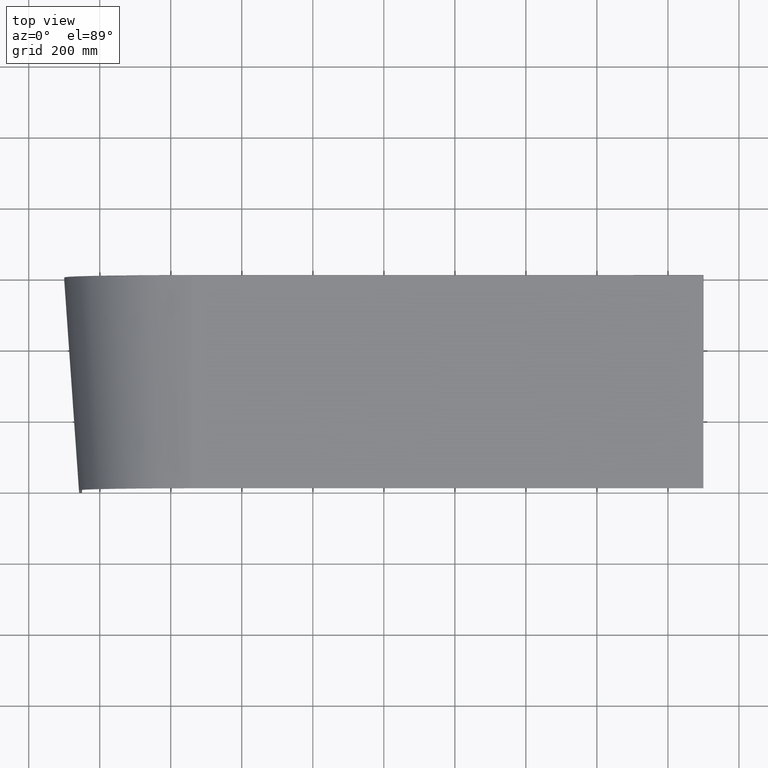
[diagram: clean part render]
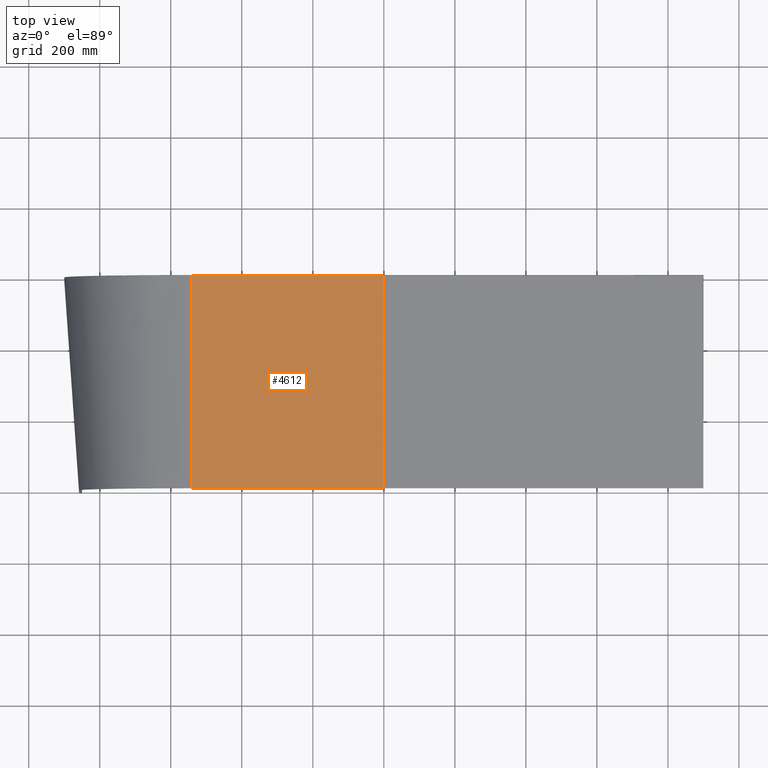
[diagram: same view with one face highlighted and labeled with its STEP entity id]
A machine part, top view. The second image highlights one B-rep face of the part: STEP entity #4612.
In plain terms, the highlighted face is a freeform B-spline surface patch.
Its self-contained STEP definition (entity closure, byte-faithful):
#13=DIRECTION('',(0.E0,-9.975640502598E-1,-6.975647374413E-2));
#14=VECTOR('',#13,5.990938200700E2);
#15=CARTESIAN_POINT('',(-1.805665683518E-14,-2.365542365377E0,
3.998345851639E2));
#16=LINE('',#15,#14);
#155=DIRECTION('',(-1.E0,2.632843382463E-7,1.841929323530E-8));
#156=VECTOR('',#155,5.399999998854E2);
#157=CARTESIAN_POINT('',(-1.805665683518E-14,-2.365542365377E0,
3.998345851639E2));
#158=LINE('',#157,#156);
#159=DIRECTION('',(-1.E0,0.E0,0.E0));
#160=VECTOR('',#159,5.399999707731E2);
#161=CARTESIAN_POINT('',(-2.842170943040E-14,-6.E2,3.580439128339E2));
#162=LINE('',#161,#160);
#163=DIRECTION('',(4.859378568577E-8,-9.975640502593E-1,-6.975647375189E-2));
#164=VECTOR('',#163,5.990939625910E2);
#165=CARTESIAN_POINT('',(-5.399999998854E2,-2.365400191835E0,3.998345951103E2));
#166=LINE('',#165,#164);
#3806=CARTESIAN_POINT('',(-2.842170943040E-14,-6.E2,3.580439128339E2));
#3807=VERTEX_POINT('',#3806);
#3808=CARTESIAN_POINT('',(-5.399999707731E2,-6.E2,3.580439128339E2));
#3809=VERTEX_POINT('',#3808);
#3940=CARTESIAN_POINT('',(0.E0,-2.365542365377E0,3.998345851639E2));
#3941=VERTEX_POINT('',#3940);
#3943=CARTESIAN_POINT('',(-5.399999998854E2,-2.365400191835E0,
3.998345951103E2));
#3944=VERTEX_POINT('',#3943);
#4555=CARTESIAN_POINT('',(5.402160791633E0,-6.059763459815E2,3.576260060123E2));
#4556=CARTESIAN_POINT('',(-4.961967043891E1,-6.059763459815E2,
3.576260060133E2));
#4557=CARTESIAN_POINT('',(-1.316803426776E2,-6.059763459812E2,
3.576260059950E2));
#4558=CARTESIAN_POINT('',(-2.418281060261E2,-6.059763459805E2,
3.576260059504E2));
#4559=CARTESIAN_POINT('',(-3.519461560281E2,-6.059763459800E2,
3.576260059179E2));
#4560=CARTESIAN_POINT('',(-4.620734698129E2,-6.059763459805E2,
3.576260059500E2));
#4561=CARTESIAN_POINT('',(-5.171983815826E2,-6.059763459811E2,
3.576260059890E2));
#4562=CARTESIAN_POINT('',(-5.452919420436E2,-6.059763459815E2,
3.576260060156E2));
#4563=CARTESIAN_POINT('',(5.358074679780E0,-4.840588878598E2,3.661513051800E2));
#4564=CARTESIAN_POINT('',(-4.920811158752E1,-4.840588878594E2,
3.661513051598E2));
#4565=CARTESIAN_POINT('',(-1.308418675021E2,-4.840588878652E2,
3.661513055198E2));
#4566=CARTESIAN_POINT('',(-2.408025499790E2,-4.840588878791E2,
3.661513063994E2));
#4567=CARTESIAN_POINT('',(-3.513396693824E2,-4.840588878893E2,
3.661513070399E2));
#4568=CARTESIAN_POINT('',(-4.616970720700E2,-4.840588878792E2,
3.661513064061E2));
#4569=CARTESIAN_POINT('',(-5.171113626852E2,-4.840588878670E2,
3.661513056395E2));
#4570=CARTESIAN_POINT('',(-5.453127836397E2,-4.840588878587E2,
3.661513051149E2));
#4571=CARTESIAN_POINT('',(5.313988566876E0,-3.621414297380E2,3.746766043470E2));
#4572=CARTESIAN_POINT('',(-4.879655272616E1,-3.621414297374E2,
3.746766043210E2));
#4573=CARTESIAN_POINT('',(-1.300033923122E2,-3.621414297492E2,
3.746766047831E2));
#4574=CARTESIAN_POINT('',(-2.397769939275E2,-3.621414297780E2,
3.746766059121E2));
#4575=CARTESIAN_POINT('',(-3.507331827479E2,-3.621414297990E2,
3.746766067343E2));
#4576=CARTESIAN_POINT('',(-4.613206743383E2,-3.621414297782E2,
3.746766059207E2));
#4577=CARTESIAN_POINT('',(-5.170243437926E2,-3.621414297531E2,
3.746766049367E2));
#4578=CARTESIAN_POINT('',(-5.453336252351E2,-3.621414297359E2,
3.746766042635E2));
#4579=CARTESIAN_POINT('',(5.269902455960E0,-2.402239716163E2,3.832019035135E2));
#4580=CARTESIAN_POINT('',(-4.838499388356E1,-2.402239716155E2,
3.832019034924E2));
#4581=CARTESIAN_POINT('',(-1.291649171528E2,-2.402239716304E2,
3.832019038682E2));
#4582=CARTESIAN_POINT('',(-2.387514378955E2,-2.402239716668E2,
3.832019047865E2));
#4583=CARTESIAN_POINT('',(-3.501266961089E2,-2.402239716933E2,
3.832019054553E2));
#4584=CARTESIAN_POINT('',(-4.609442765964E2,-2.402239716670E2,
3.832019047935E2));
#4585=CARTESIAN_POINT('',(-5.169373248952E2,-2.402239716353E2,
3.832019039932E2));
#4586=CARTESIAN_POINT('',(-5.453544668312E2,-2.402239716136E2,
3.832019034455E2));
#4587=CARTESIAN_POINT('',(5.225816344055E0,-1.183065134945E2,3.917272026797E2));
#4588=CARTESIAN_POINT('',(-4.797343503174E1,-1.183065134939E2,
3.917272026690E2));
#4589=CARTESIAN_POINT('',(-1.283264419743E2,-1.183065135057E2,
3.917272028596E2));
#4590=CARTESIAN_POINT('',(-2.377258818402E2,-1.183065135348E2,
3.917272033252E2));
#4591=CARTESIAN_POINT('',(-3.495202094516E2,-1.183065135559E2,
3.917272036643E2));
#4592=CARTESIAN_POINT('',(-4.605678788460E2,-1.183065135350E2,
3.917272033288E2));
#4593=CARTESIAN_POINT('',(-5.168503059951E2,-1.183065135097E2,
3.917272029229E2));
#4594=CARTESIAN_POINT('',(-5.453753084276E2,-1.183065134924E2,
3.917272026452E2));
#4595=CARTESIAN_POINT('',(5.181730232163E0,3.610944627231E0,4.002525018459E2));
#4596=CARTESIAN_POINT('',(-4.756187618001E1,3.610944627211E0,4.002525018462E2));
#4597=CARTESIAN_POINT('',(-1.274879667973E2,3.610944627570E0,4.002525018404E2));
#4598=CARTESIAN_POINT('',(-2.367003257898E2,3.610944628447E0,4.002525018261E2));
#4599=CARTESIAN_POINT('',(-3.489137228014E2,3.610944629086E0,4.002525018158E2));
#4600=CARTESIAN_POINT('',(-4.601914811003E2,3.610944628454E0,4.002525018261E2));
#4601=CARTESIAN_POINT('',(-5.167632870967E2,3.610944627689E0,4.002525018385E2));
#4602=CARTESIAN_POINT('',(-5.453961500239E2,3.610944627166E0,4.002525018469E2));
#4603=B_SPLINE_SURFACE_WITH_KNOTS('',5,5,((#4555,#4556,#4557,#4558,#4559,#4560,
#4561,#4562),(#4563,#4564,#4565,#4566,#4567,#4568,#4569,#4570),(#4571,#4572,
#4573,#4574,#4575,#4576,#4577,#4578),(#4579,#4580,#4581,#4582,#4583,#4584,#4585,
#4586),(#4587,#4588,#4589,#4590,#4591,#4592,#4593,#4594),(#4595,#4596,#4597,
#4598,#4599,#4600,#4601,#4602)),.UNSPECIFIED.,.F.,.F.,.F.,(6,6),(6,1,1,6),(
-9.960576635819E-3,1.006018241045E0),(-9.966495546418E-3,4.97581892E-1,
7.47115724E-1,1.006418553743E0),.UNSPECIFIED.);
#4604=ORIENTED_EDGE('',*,*,#4546,.F.);
#4605=ORIENTED_EDGE('',*,*,#4021,.T.);
#4607=ORIENTED_EDGE('',*,*,#4606,.T.);
#4609=ORIENTED_EDGE('',*,*,#4608,.F.);
#4610=EDGE_LOOP('',(#4604,#4605,#4607,#4609));
#4611=FACE_OUTER_BOUND('',#4610,.F.);
#4612=ADVANCED_FACE('',(#4611),#4603,.T.);
#4021=EDGE_CURVE('',#3941,#3807,#16,.T.);
#4546=EDGE_CURVE('',#3941,#3944,#158,.T.);
#4606=EDGE_CURVE('',#3807,#3809,#162,.T.);
#4608=EDGE_CURVE('',#3944,#3809,#166,.T.);